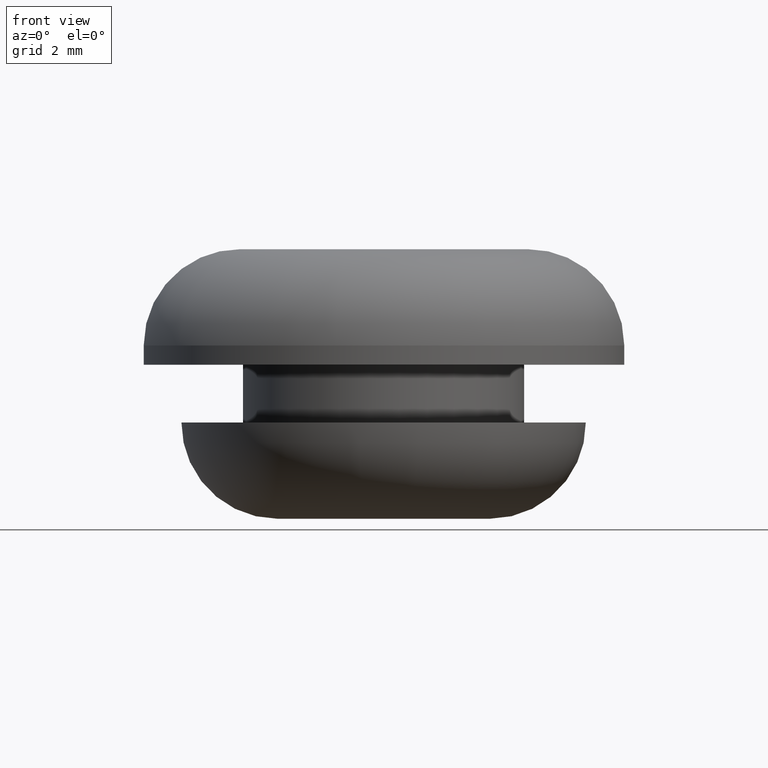
[diagram: clean part render]
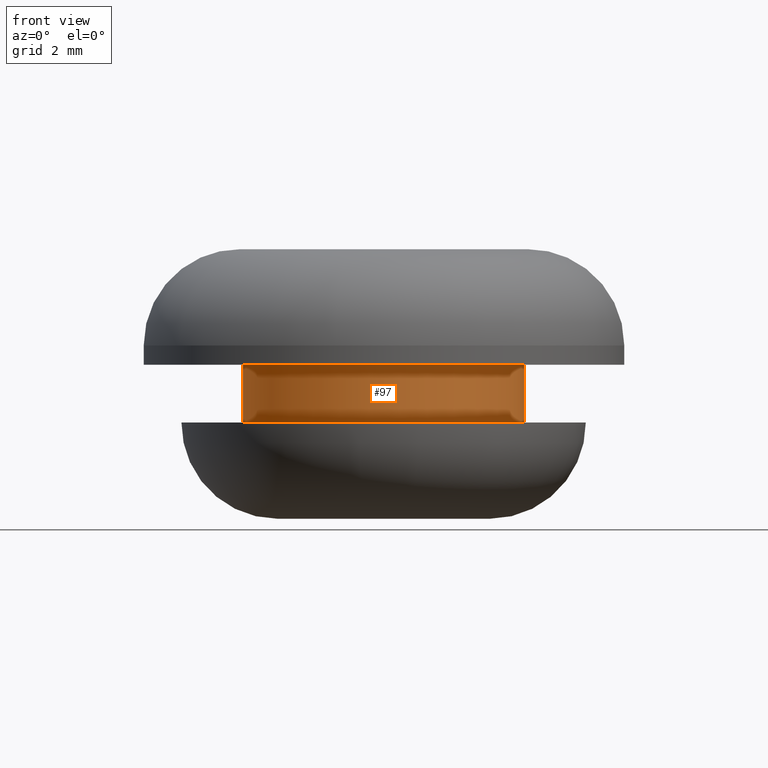
[diagram: same view with one face highlighted and labeled with its STEP entity id]
A machine part, front view. The second image highlights one B-rep face of the part: STEP entity #97.
In plain terms, the highlighted cylindrical surface (bore or boss wall) has radius 3.65 mm, axis along (0, 0, -1).
Its self-contained STEP definition (entity closure, byte-faithful):
#17=FACE_BOUND('',#38,.T.);
#24=CYLINDRICAL_SURFACE('',#109,3.65);
#28=FACE_OUTER_BOUND('',#37,.T.);
#37=EDGE_LOOP('',(#77));
#38=EDGE_LOOP('',(#78));
#53=CIRCLE('',#110,3.65);
#54=CIRCLE('',#111,3.65);
#61=VERTEX_POINT('',#165);
#62=VERTEX_POINT('',#167);
#69=EDGE_CURVE('',#61,#61,#53,.T.);
#70=EDGE_CURVE('',#62,#62,#54,.T.);
#77=ORIENTED_EDGE('',*,*,#69,.F.);
#78=ORIENTED_EDGE('',*,*,#70,.F.);
#97=ADVANCED_FACE('',(#28,#17),#24,.T.);
#109=AXIS2_PLACEMENT_3D('',#164,#130,#131);
#110=AXIS2_PLACEMENT_3D('',#166,#132,#133);
#111=AXIS2_PLACEMENT_3D('',#168,#134,#135);
#130=DIRECTION('center_axis',(0.,0.,-1.));
#131=DIRECTION('ref_axis',(-1.,0.,0.));
#132=DIRECTION('center_axis',(0.,0.,1.));
#133=DIRECTION('ref_axis',(-1.,0.,0.));
#134=DIRECTION('center_axis',(0.,0.,-1.));
#135=DIRECTION('ref_axis',(-1.,0.,0.));
#164=CARTESIAN_POINT('Origin',(0.,0.,-0.75));
#165=CARTESIAN_POINT('',(-3.65,0.,0.));
#166=CARTESIAN_POINT('Origin',(0.,0.,0.));
#167=CARTESIAN_POINT('',(-3.65,0.,-1.5));
#168=CARTESIAN_POINT('Origin',(0.,0.,-1.5));